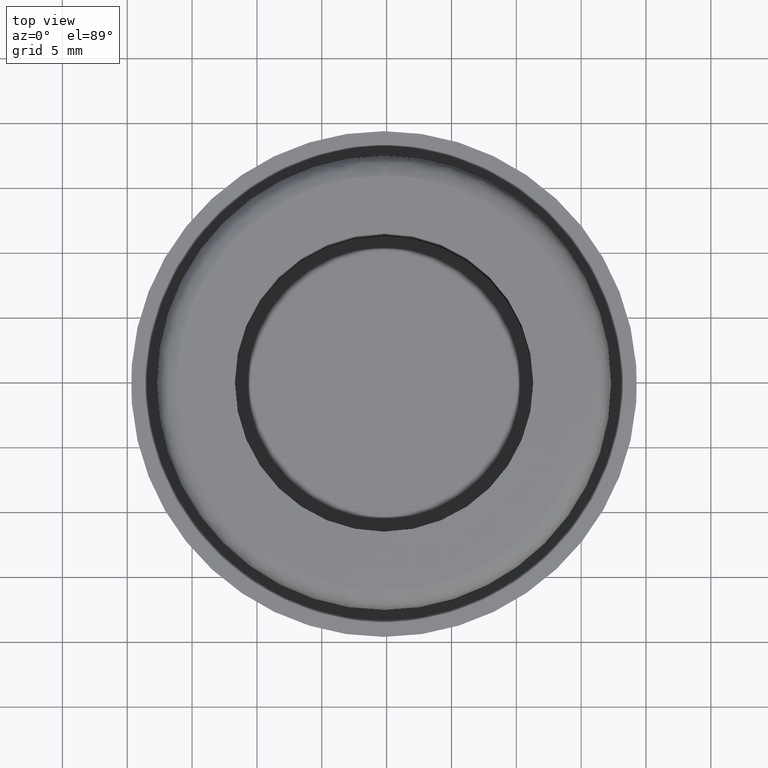
[diagram: clean part render]
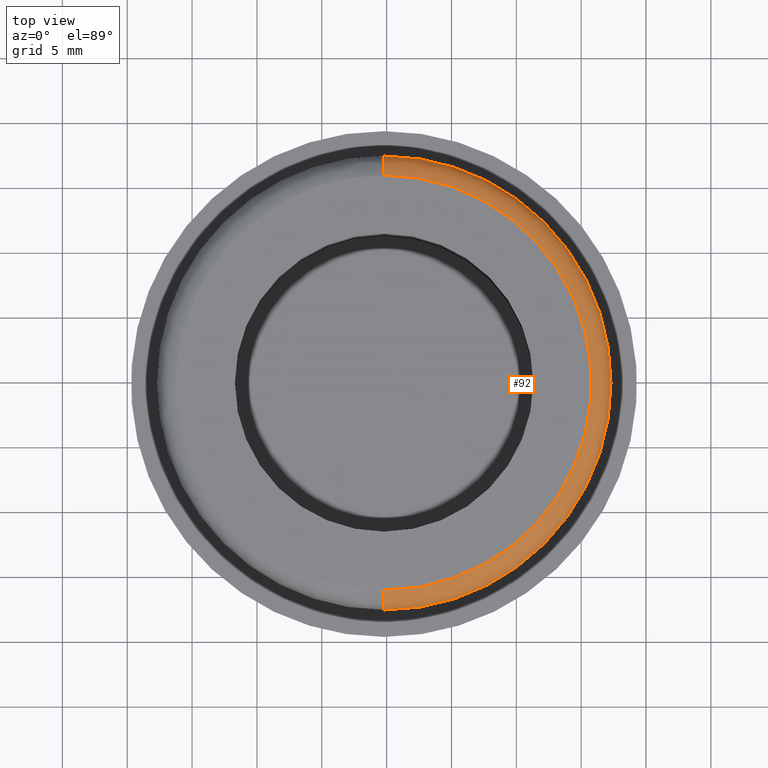
[diagram: same view with one face highlighted and labeled with its STEP entity id]
A machine part, top view. The second image highlights one B-rep face of the part: STEP entity #92.
In plain terms, the highlighted face is a freeform B-spline surface patch.
Its self-contained STEP definition (entity closure, byte-faithful):
#92=ADVANCED_FACE('',(#272),#271,.T.);
#271=( BOUNDED_SURFACE() B_SPLINE_SURFACE( 2,2,((#515,#516,#517,#518,#519),(#520,#521,#522,#523,#524),(#525,#526,#527,#528,#529),(#530,#531,#532,#533,#534),(#535,#536,#537,#538,#539)), .UNSPECIFIED.,.F.,.F.,.F.) B_SPLINE_SURFACE_WITH_KNOTS((3,2,3),(3,2,3),(0.00000000000E+000,5.00000000000E-001,1.00000000000E+000),(0.00000000000E+000,5.00000000000E-001,1.00000000000E+000), .UNSPECIFIED. ) GEOMETRIC_REPRESENTATION_ITEM() RATIONAL_B_SPLINE_SURFACE(((1.00000000000E+000,7.07106781187E-001,1.00000000000E+000,7.07106781187E-001,1.00000000000E+000),(7.07106781187E-001,5.00000000000E-001,7.07106781187E-001,5.00000000000E-001,7.07106781187E-001),(1.00000000000E+000,7.07106781187E-001,1.00000000000E+000,7.07106781187E-001,1.00000000000E+000),(7.07106781187E-001,5.00000000000E-001,7.07106781187E-001,5.00000000000E-001,7.07106781187E-001),(1.00000000000E+000,7.07106781187E-001,1.00000000000E+000,7.07106781187E-001,1.00000000000E+000))) REPRESENTATION_ITEM('') SURFACE() );
#272=FACE_OUTER_BOUND('',#540,.T.);
#515=CARTESIAN_POINT('',(-7.07793187079E-020,1.50000000000E+000,-1.75000000000E+001));
#516=CARTESIAN_POINT('',(-7.07793187079E-020,-8.79251776863E-015,-1.75000000000E+001));
#517=CARTESIAN_POINT('',(-6.47125199615E-020,-3.33066907388E-015,-1.60000000000E+001));
#518=CARTESIAN_POINT('',(-5.86457212151E-020,2.51214793389E-015,-1.45000000000E+001));
#519=CARTESIAN_POINT('',(-5.86457212151E-020,1.50000000000E+000,-1.45000000000E+001));
#520=CARTESIAN_POINT('',(1.75000000000E+001,1.50000000000E+000,-1.75000000000E+001));
#521=CARTESIAN_POINT('',(1.75000000000E+001,-8.79251776863E-015,-1.75000000000E+001));
#522=CARTESIAN_POINT('',(1.60000000000E+001,-3.33066907388E-015,-1.60000000000E+001));
#523=CARTESIAN_POINT('',(1.45000000000E+001,2.51214793389E-015,-1.45000000000E+001));
#524=CARTESIAN_POINT('',(1.45000000000E+001,1.50000000000E+000,-1.45000000000E+001));
#525=CARTESIAN_POINT('',(1.75000000000E+001,1.50000000000E+000,-1.07163672857E-015));
#526=CARTESIAN_POINT('',(1.75000000000E+001,-8.79251776863E-015,-1.07163672857E-015));
#527=CARTESIAN_POINT('',(1.60000000000E+001,-3.33066907388E-015,-9.79782151838E-016));
#528=CARTESIAN_POINT('',(1.45000000000E+001,2.51214793389E-015,-8.87927575103E-016));
#529=CARTESIAN_POINT('',(1.45000000000E+001,1.50000000000E+000,-8.87927575103E-016));
#530=CARTESIAN_POINT('',(1.75000000000E+001,1.50000000000E+000,1.75000000000E+001));
#531=CARTESIAN_POINT('',(1.75000000000E+001,-8.79251776863E-015,1.75000000000E+001));
#532=CARTESIAN_POINT('',(1.60000000000E+001,-3.33066907388E-015,1.60000000000E+001));
#533=CARTESIAN_POINT('',(1.45000000000E+001,2.51214793389E-015,1.45000000000E+001));
#534=CARTESIAN_POINT('',(1.45000000000E+001,1.50000000000E+000,1.45000000000E+001));
#535=CARTESIAN_POINT('',(2.14320267783E-015,1.50000000000E+000,1.75000000000E+001));
#536=CARTESIAN_POINT('',(2.14320267783E-015,-8.79251776863E-015,1.75000000000E+001));
#537=CARTESIAN_POINT('',(1.95949959116E-015,-3.33066907388E-015,1.60000000000E+001));
#538=CARTESIAN_POINT('',(1.77579650448E-015,2.51214793389E-015,1.45000000000E+001));
#539=CARTESIAN_POINT('',(1.77579650448E-015,1.50000000000E+000,1.45000000000E+001));
#540=EDGE_LOOP('',(#625,#626,#627,#628));
#625=ORIENTED_EDGE('',*,*,#678,.T.);
#626=ORIENTED_EDGE('',*,*,#681,.T.);
#627=ORIENTED_EDGE('',*,*,#649,.F.);
#628=ORIENTED_EDGE('',*,*,#682,.F.);
#649=EDGE_CURVE('',#715,#716,#717,.T.);
#678=EDGE_CURVE('',#910,#903,#911,.T.);
#681=EDGE_CURVE('',#903,#716,#929,.T.);
#682=EDGE_CURVE('',#910,#715,#935,.T.);
#715=VERTEX_POINT('',#987);
#716=VERTEX_POINT('',#988);
#717=CIRCLE('',#992,1.60000000000E+001);
#903=VERTEX_POINT('',#1115);
#910=VERTEX_POINT('',#1118);
#911=CIRCLE('',#1122,1.75000000000E+001);
#929=(BOUNDED_CURVE() B_SPLINE_CURVE(2,(#1129,#1130,#1131),.UNSPECIFIED.,.F.,.F.) B_SPLINE_CURVE_WITH_KNOTS((3,3),(0.00000000000E+000,5.00000000000E-001),.UNSPECIFIED.) CURVE() GEOMETRIC_REPRESENTATION_ITEM() RATIONAL_B_SPLINE_CURVE((1.00000000000E+000,7.07106781187E-001,1.00000000000E+000)) REPRESENTATION_ITEM('') );
#935=(BOUNDED_CURVE() B_SPLINE_CURVE(3,(#1132,#1133,#1134,#1135,#1136),.UNSPECIFIED.,.F.,.F.) B_SPLINE_CURVE_WITH_KNOTS((4,1,4),(0.00000000000E+000,2.50000001582E-001,5.00000002747E-001),.UNSPECIFIED.) CURVE() GEOMETRIC_REPRESENTATION_ITEM() RATIONAL_B_SPLINE_CURVE((1.00000000000E+000,1.00000000000E+000,1.00000000000E+000,1.00000000000E+000,1.00000000000E+000)) REPRESENTATION_ITEM('') );
#987=CARTESIAN_POINT('',(0.00000000000E+000,-3.46944695195E-015,-1.60000000000E+001));
#988=CARTESIAN_POINT('',(1.77635683940E-015,-3.46944695195E-015,1.60000000000E+001));
#989=CARTESIAN_POINT('',(0.00000000000E+000,-3.46944695195E-015,0.00000000000E+000));
#990=DIRECTION('',(0.00000000000E+000,-1.00000000000E+000,-0.00000000000E+000));
#991=DIRECTION('',(-1.22460635382E-016,0.00000000000E+000,-1.00000000000E+000));
#992=AXIS2_PLACEMENT_3D('',#989,#990,#991);
#1115=CARTESIAN_POINT('',(1.18423789293E-015,1.50000000000E+000,1.75000000000E+001));
#1118=CARTESIAN_POINT('',(0.00000000000E+000,1.50000000000E+000,-1.75000000000E+001));
#1119=CARTESIAN_POINT('',(0.00000000000E+000,1.50000000000E+000,0.00000000000E+000));
#1120=DIRECTION('',(0.00000000000E+000,-1.00000000000E+000,-0.00000000000E+000));
#1121=DIRECTION('',(-1.22460635382E-016,0.00000000000E+000,-1.00000000000E+000));
#1122=AXIS2_PLACEMENT_3D('',#1119,#1120,#1121);
#1129=CARTESIAN_POINT('',(-2.14306111919E-015,1.50000000000E+000,1.75000000000E+001));
#1130=CARTESIAN_POINT('',(-2.14306111919E-015,-8.79251776863E-015,1.75000000000E+001));
#1131=CARTESIAN_POINT('',(-1.95937016612E-015,-3.33066907388E-015,1.60000000000E+001));
#1132=CARTESIAN_POINT('',(3.55271367880E-015,1.50000000000E+000,-1.75000000000E+001));
#1133=CARTESIAN_POINT('',(3.28174106578E-015,1.11082433816E+000,-1.75033360890E+001));
#1134=CARTESIAN_POINT('',(2.83470331364E-015,3.24935524605E-001,-1.71750644656E+001));
#1135=CARTESIAN_POINT('',(2.84193074232E-015,-3.33609194752E-003,-1.63891756495E+001));
#1136=CARTESIAN_POINT('',(2.96059472234E-015,-3.28539004046E-015,-1.59999999883E+001));